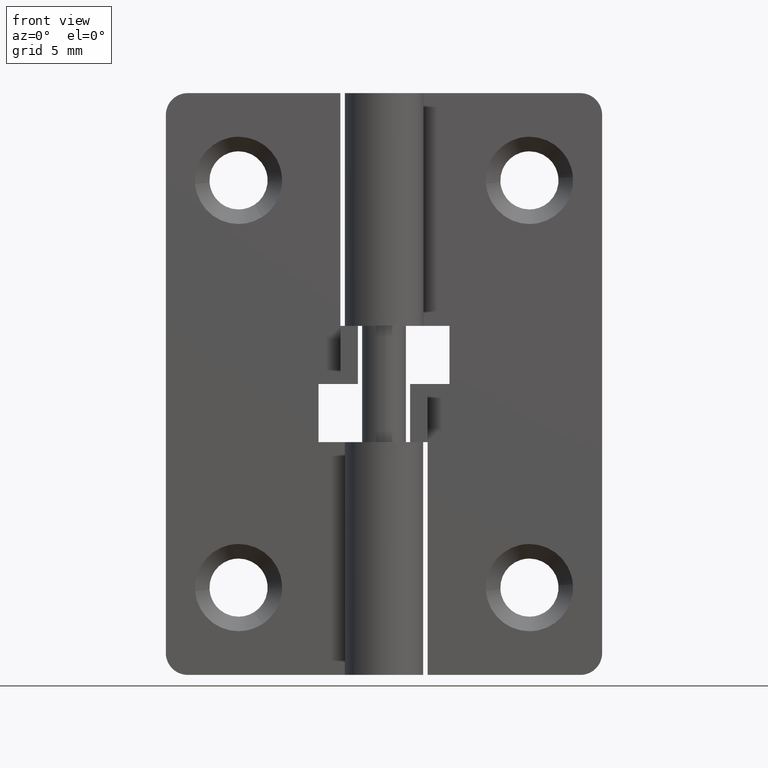
[diagram: clean part render]
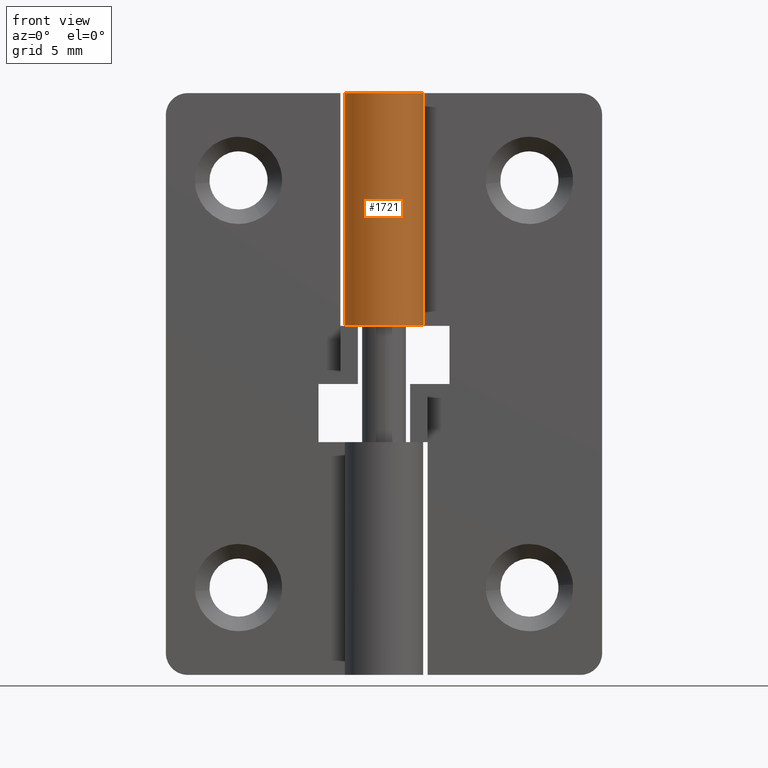
[diagram: same view with one face highlighted and labeled with its STEP entity id]
A machine part, front view. The second image highlights one B-rep face of the part: STEP entity #1721.
In plain terms, the highlighted face is a freeform B-spline surface patch.
Its self-contained STEP definition (entity closure, byte-faithful):
#1260=CARTESIAN_POINT('',(0.004024921167902,2.699997000000000,23.999962000000000));
#1261=VERTEX_POINT('',#1260);
#1262=CARTESIAN_POINT('',(0.0,2.699997000000000,23.999962000000000));
#1263=VERTEX_POINT('',#1262);
#1264=CARTESIAN_POINT('',(0.004024921167902,2.699997000000000,23.999962000000000));
#1265=CARTESIAN_POINT('',(0.0,2.699997000000000,23.999962000000000));
#1266=QUASI_UNIFORM_CURVE('',1,(#1264,#1265),.UNSPECIFIED.,.F.,.U.);
#1267=EDGE_CURVE('',#1261,#1263,#1266,.T.);
#1311=CARTESIAN_POINT('',(2.277608394786005,1.450000000000114,23.999962000000000));
#1312=VERTEX_POINT('',#1311);
#1318=CARTESIAN_POINT('',(0.0,2.699997000000000,23.999962000000000));
#1319=CARTESIAN_POINT('',(-2.095109977493359,2.699994879182186,23.999962000000004));
#1320=CARTESIAN_POINT('',(-2.615415091760214,0.670520571077475,23.999962000000000));
#1321=CARTESIAN_POINT('',(-3.135720206027071,-1.358953737027236,23.999962000000004));
#1322=CARTESIAN_POINT('',(-1.299038105676602,-2.366961575708954,23.999962000000000));
#1323=CARTESIAN_POINT('',(0.537643994673867,-3.374969414390670,23.999962000000004));
#1324=CARTESIAN_POINT('',(1.970202022019861,-1.846157734330594,23.999962000000000));
#1325=CARTESIAN_POINT('',(3.402760049365857,-0.317346054270515,23.999962000000004));
#1326=CARTESIAN_POINT('',(2.277608394786005,1.450000000000114,23.999962000000000));
#1334=(BOUNDED_CURVE()B_SPLINE_CURVE(2,(#1318,#1319,#1320,#1321,#1322,#1323,#1324,#1325,#1326),.UNSPECIFIED.,.F.,.U.)B_SPLINE_CURVE_WITH_KNOTS((3,2,2,2,3),(0.0,0.250000000000000,0.500000000000000,0.750000000000000,1.0),.UNSPECIFIED.)CURVE()GEOMETRIC_REPRESENTATION_ITEM()RATIONAL_B_SPLINE_CURVE((1.0,0.790045133626190,1.0,0.790045133626190,1.0,0.790045133626190,1.0,0.790045133626190,1.0))REPRESENTATION_ITEM(''));
#1335=EDGE_CURVE('',#1263,#1312,#1334,.T.);
#1530=CARTESIAN_POINT('',(0.004024921167902,2.699997000000110,39.999954000000002));
#1531=VERTEX_POINT('',#1530);
#1537=CARTESIAN_POINT('',(2.277608394786005,1.450000000000114,39.999954000000002));
#1538=VERTEX_POINT('',#1537);
#1539=CARTESIAN_POINT('',(0.004024921167904,2.699997000000110,39.999954000000002));
#1540=CARTESIAN_POINT('',(-2.091888897382458,2.703121406395519,39.999954000000002));
#1541=CARTESIAN_POINT('',(-2.614663787384020,0.673448794595887,39.999954000000002));
#1542=CARTESIAN_POINT('',(-3.137438677385583,-1.356223817203747,39.999954000000002));
#1543=CARTESIAN_POINT('',(-1.300801972676840,-2.365991172401123,39.999954000000002));
#1544=CARTESIAN_POINT('',(0.535834732031903,-3.375758527598499,39.999954000000002));
#1545=CARTESIAN_POINT('',(1.969513862233385,-1.846893377125636,39.999954000000002));
#1546=CARTESIAN_POINT('',(3.403192992434866,-0.318028226652773,39.999954000000002));
#1547=CARTESIAN_POINT('',(2.277608394786006,1.450000000000109,39.999954000000002));
#1555=(BOUNDED_CURVE()B_SPLINE_CURVE(2,(#1539,#1540,#1541,#1542,#1543,#1544,#1545,#1546,#1547),.UNSPECIFIED.,.F.,.U.)B_SPLINE_CURVE_WITH_KNOTS((3,2,2,2,3),(0.0,0.250000000000000,0.500000000000000,0.750000000000000,1.0),.UNSPECIFIED.)CURVE()GEOMETRIC_REPRESENTATION_ITEM()RATIONAL_B_SPLINE_CURVE((1.0,0.789930885025042,1.0,0.789930885025042,1.0,0.789930885025042,1.0,0.789930885025042,1.0))REPRESENTATION_ITEM(''));
#1556=EDGE_CURVE('',#1531,#1538,#1555,.T.);
#1677=CARTESIAN_POINT('',(2.277608394786005,1.450000000000114,23.999962000000000));
#1678=CARTESIAN_POINT('',(2.277608394786005,1.450000000000114,39.999954000000002));
#1679=QUASI_UNIFORM_CURVE('',1,(#1677,#1678),.UNSPECIFIED.,.F.,.U.);
#1680=EDGE_CURVE('',#1312,#1538,#1679,.T.);
#1688=CARTESIAN_POINT('',(2.227417977353597,1.525978097536792,23.599962200000000));
#1689=CARTESIAN_POINT('',(2.227417977353597,1.525978097536792,40.409953795000007));
#1690=CARTESIAN_POINT('',(4.145835370333900,-1.274270081706239,23.599962199999990));
#1691=CARTESIAN_POINT('',(4.145835370333900,-1.274270081706239,40.409953795000000));
#1692=CARTESIAN_POINT('',(0.985807355287603,-2.513599780844369,23.599962200000000));
#1693=CARTESIAN_POINT('',(0.985807355287603,-2.513599780844369,40.409953795000007));
#1694=CARTESIAN_POINT('',(-2.174220659758694,-3.752929479982500,23.599962199999990));
#1695=CARTESIAN_POINT('',(-2.174220659758694,-3.752929479982500,40.409953795000000));
#1696=CARTESIAN_POINT('',(-2.670934785257364,-0.395104255737893,23.599962200000000));
#1697=CARTESIAN_POINT('',(-2.670934785257364,-0.395104255737893,40.409953795000007));
#1698=CARTESIAN_POINT('',(-3.167648910756034,2.962720968506714,23.599962199999990));
#1699=CARTESIAN_POINT('',(-3.167648910756034,2.962720968506714,40.409953795000000));
#1700=CARTESIAN_POINT('',(0.215851836767097,2.691358018652344,23.599962200000000));
#1701=CARTESIAN_POINT('',(0.215851836767097,2.691358018652344,40.409953795000007));
#1709=(BOUNDED_SURFACE()B_SPLINE_SURFACE(1,2,((#1688,#1690,#1692,#1694,#1696,#1698,#1700),(#1689,#1691,#1693,#1695,#1697,#1699,#1701)),.UNSPECIFIED.,.F.,.F.,.U.)B_SPLINE_SURFACE_WITH_KNOTS((2,2),(3,2,2,3),(0.0,16.809991595000010),(0.0,5.209301600829763,10.418603201659529,15.627904802489290),.UNSPECIFIED.)GEOMETRIC_REPRESENTATION_ITEM()RATIONAL_B_SPLINE_SURFACE(((1.0,0.622514636637620,1.0,0.622514636637620,1.0,0.622514636637620,1.0),(1.0,0.622514636637620,1.0,0.622514636637620,1.0,0.622514636637620,1.0)))REPRESENTATION_ITEM('')SURFACE());
#1710=CARTESIAN_POINT('',(0.004024921167902,2.699997000000000,23.999962000000000));
#1711=CARTESIAN_POINT('',(0.004024921167902,2.699997000000110,39.999954000000002));
#1712=QUASI_UNIFORM_CURVE('',1,(#1710,#1711),.UNSPECIFIED.,.F.,.U.);
#1713=EDGE_CURVE('',#1261,#1531,#1712,.T.);
#1714=ORIENTED_EDGE('',*,*,#1713,.F.);
#1715=ORIENTED_EDGE('',*,*,#1267,.T.);
#1716=ORIENTED_EDGE('',*,*,#1335,.T.);
#1717=ORIENTED_EDGE('',*,*,#1680,.T.);
#1718=ORIENTED_EDGE('',*,*,#1556,.F.);
#1719=EDGE_LOOP('',(#1714,#1715,#1716,#1717,#1718));
#1720=FACE_OUTER_BOUND('',#1719,.T.);
#1721=ADVANCED_FACE('',(#1720),#1709,.T.);